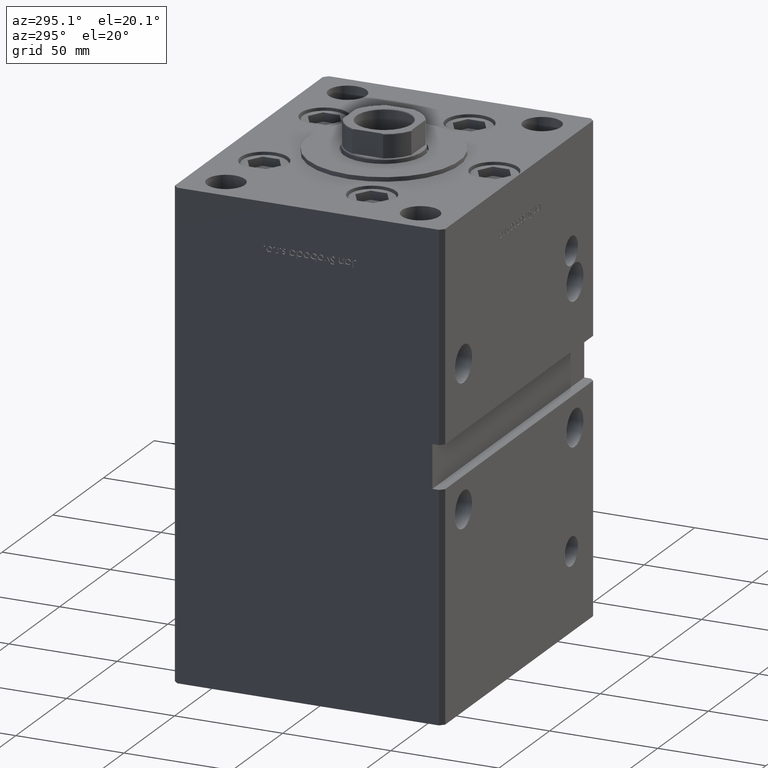
[diagram: clean part render]
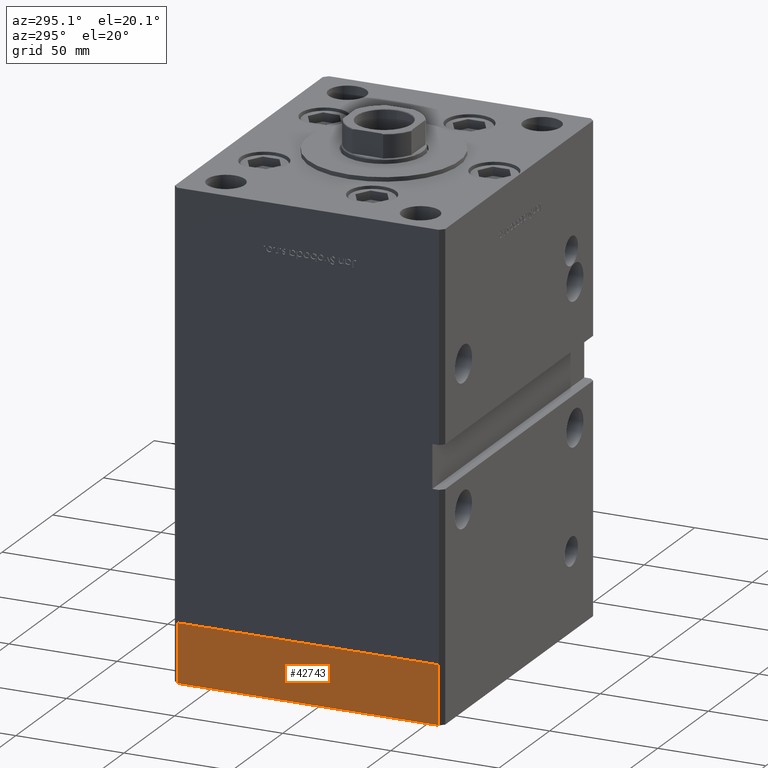
[diagram: same view with one face highlighted and labeled with its STEP entity id]
A machine part, auxiliary view. The second image highlights one B-rep face of the part: STEP entity #42743.
In plain terms, the highlighted planar face has unit normal (-1, -0, 0).
Its self-contained STEP definition (entity closure, byte-faithful):
#1656 = DIRECTION ( 'NONE',  ( -6.881547673296424104E-16, 1.000000000000000000, 0.000000000000000000 ) ) ;
#2443 = VECTOR ( 'NONE', #43245, 1000.000000000000000 ) ;
#2816 = CARTESIAN_POINT ( 'NONE',  ( 74.99999999999992895, 60.50000000000002842, 0.000000000000000000 ) ) ;
#5679 = CARTESIAN_POINT ( 'NONE',  ( 75.00000000000001421, -60.50000000000000711, -27.00000000000000000 ) ) ;
#5686 = CARTESIAN_POINT ( 'NONE',  ( 75.00000000000001421, -60.50000000000000711, -27.00000000000000000 ) ) ;
#7504 = DIRECTION ( 'NONE',  ( 0.000000000000000000, 0.000000000000000000, 1.000000000000000000 ) ) ;
#9360 = VECTOR ( 'NONE', #24663, 1000.000000000000000 ) ;
#9681 = PLANE ( 'NONE',  #46429 ) ;
#12303 = CARTESIAN_POINT ( 'NONE',  ( 74.99999999999992895, 60.50000000000002842, -27.00000000000000000 ) ) ;
#12648 = VERTEX_POINT ( 'NONE', #13407 ) ;
#13407 = CARTESIAN_POINT ( 'NONE',  ( 74.99999999999992895, 60.50000000000002842, -27.00000000000000000 ) ) ;
#15818 = LINE ( 'NONE', #48280, #9360 ) ;
#15925 = VERTEX_POINT ( 'NONE', #5686 ) ;
#16412 = VECTOR ( 'NONE', #7504, 1000.000000000000000 ) ;
#18826 = CARTESIAN_POINT ( 'NONE',  ( 75.00000000000001421, -60.50000000000000711, -27.00000000000000000 ) ) ;
#18873 = EDGE_CURVE ( 'NONE', #15925, #30453, #15818, .T. ) ;
#21291 = CARTESIAN_POINT ( 'NONE',  ( 75.00000000000001421, -60.50000000000000711, 0.000000000000000000 ) ) ;
#22012 = DIRECTION ( 'NONE',  ( 1.000000000000000000, 6.881547673296424104E-16, -0.000000000000000000 ) ) ;
#22589 = LINE ( 'NONE', #18826, #2443 ) ;
#24663 = DIRECTION ( 'NONE',  ( 0.000000000000000000, 0.000000000000000000, 1.000000000000000000 ) ) ;
#25304 = LINE ( 'NONE', #21291, #32528 ) ;
#26117 = ORIENTED_EDGE ( 'NONE', *, *, #18873, .F. ) ;
#26145 = VERTEX_POINT ( 'NONE', #2816 ) ;
#28561 = ORIENTED_EDGE ( 'NONE', *, *, #45384, .T. ) ;
#30453 = VERTEX_POINT ( 'NONE', #48323 ) ;
#32289 = EDGE_CURVE ( 'NONE', #15925, #12648, #22589, .T. ) ;
#32528 = VECTOR ( 'NONE', #37648, 1000.000000000000000 ) ;
#34349 = ORIENTED_EDGE ( 'NONE', *, *, #37489, .F. ) ;
#37489 = EDGE_CURVE ( 'NONE', #30453, #26145, #25304, .T. ) ;
#37648 = DIRECTION ( 'NONE',  ( -6.881547673296424104E-16, 1.000000000000000000, 0.000000000000000000 ) ) ;
#39754 = EDGE_LOOP ( 'NONE', ( #34349, #26117, #49122, #28561 ) ) ;
#42743 = ADVANCED_FACE ( 'NONE', ( #46426 ), #9681, .T. ) ;
#43245 = DIRECTION ( 'NONE',  ( -6.881547673296424104E-16, 1.000000000000000000, 0.000000000000000000 ) ) ;
#45384 = EDGE_CURVE ( 'NONE', #12648, #26145, #52530, .T. ) ;
#46426 = FACE_OUTER_BOUND ( 'NONE', #39754, .T. ) ;
#46429 = AXIS2_PLACEMENT_3D ( 'NONE', #5679, #22012, #1656 ) ;
#48280 = CARTESIAN_POINT ( 'NONE',  ( 75.00000000000001421, -60.50000000000000711, -27.00000000000000000 ) ) ;
#48323 = CARTESIAN_POINT ( 'NONE',  ( 75.00000000000001421, -60.50000000000000711, 0.000000000000000000 ) ) ;
#49122 = ORIENTED_EDGE ( 'NONE', *, *, #32289, .T. ) ;
#52530 = LINE ( 'NONE', #12303, #16412 ) ;